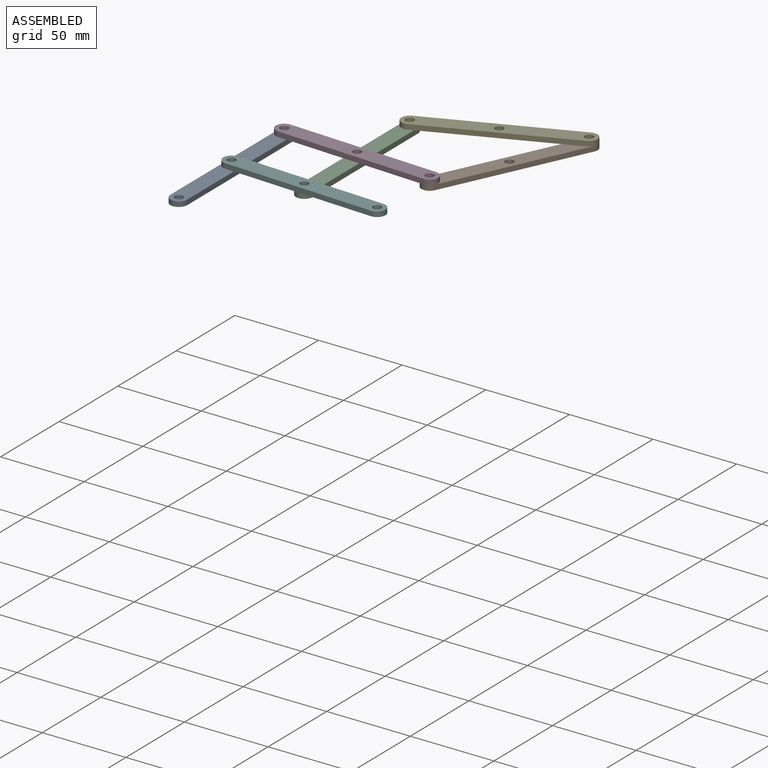
[diagram: assembled view]
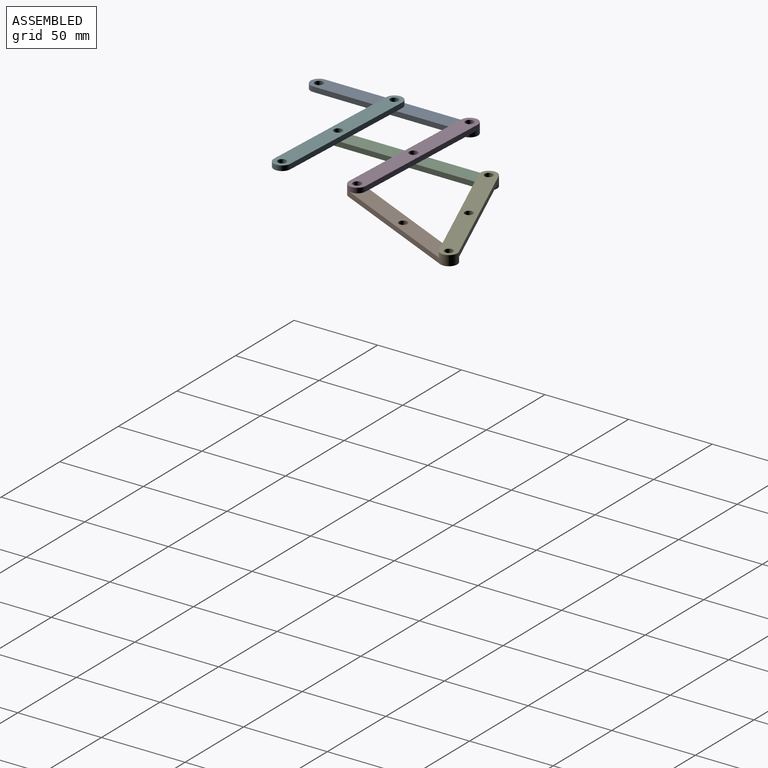
[diagram: assembled view, second angle]
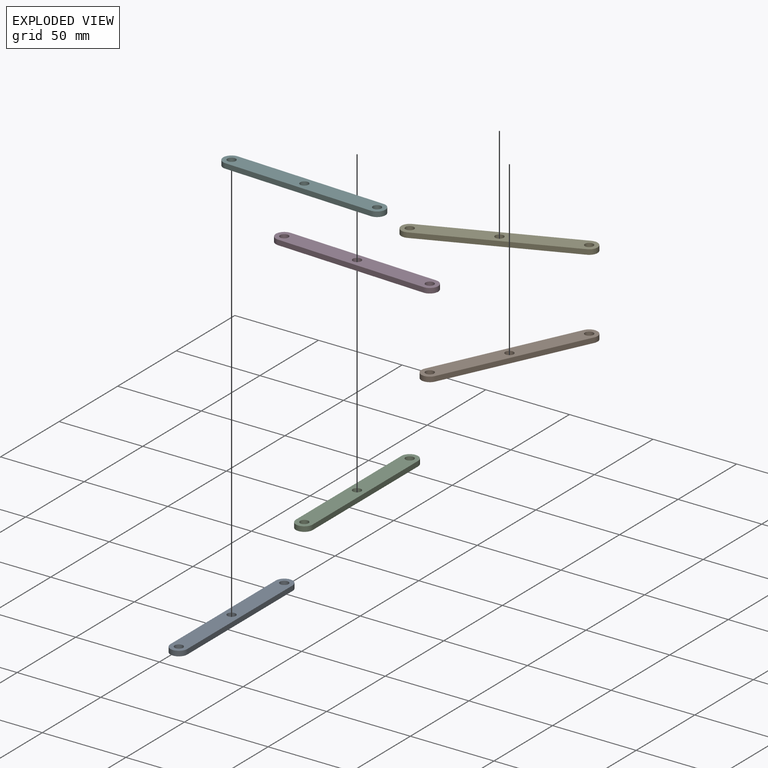
[diagram: exploded view]
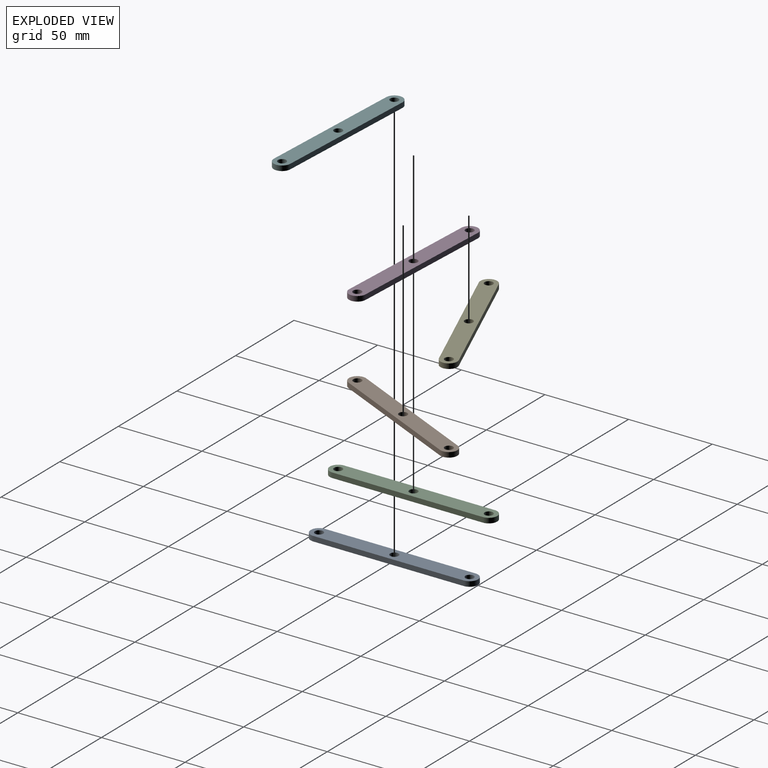
[diagram: exploded view, second angle]
ASSEMBLY  parts=6 mates=12
PART A: 9 faces, bbox 10x100x3 mm
  f0: plane 90x3mm, normal (-1,0,0), area 270mm2, adj f2,f3,f4,f5
  f1: plane 90x3mm, normal (1,0,0), area 270mm2, adj f2,f3,f4,f5
  f2: plane 100x10mm, normal (0,0,1), area 919.6mm2, adj f0,f1,f4,f5,f6,f7,f8
  f3: plane 100x10mm, normal (0,0,-1), area 919.6mm2, adj f0,f1,f4,f5,f6,f7,f8
  f4: cylinder r=5mm len=10mm, axis (0,0,-1), area 47.1mm2, adj f0,f1,f2,f3
  f5: cylinder r=5mm len=10mm, axis (0,0,1), area 47.1mm2, adj f0,f1,f2,f3
  f6: cylinder r=2.5mm len=5mm, axis (0,0,1), area 47.1mm2, adj f2,f3
  f7: cylinder r=2.5mm len=5mm, axis (0,0,1), area 47.1mm2, adj f2,f3
  f8: cylinder r=2.5mm len=5mm, axis (0,0,1), area 47.1mm2, adj f2,f3
PART B: same geometry as A
PART C: same geometry as A
PART D: same geometry as A
PART E: same geometry as A
PART F: same geometry as A
PLACE A t=(-49.58,53.87,-31.96)mm fixed
PLACE B rot(axis=(0.22,0.98,0),180deg) t=(90.19,128.59,-28.96)mm
PLACE C rot(axis=(0,0,1),0deg) t=(-4.62,96.79,-31.96)mm
PLACE D rot(axis=(0,0,1),87.3deg) t=(-49.8,44.11,-28.96)mm
PLACE E rot(axis=(-0.83,0.56,0),180deg) t=(-6.15,94.5,-25.96)mm
PLACE F rot(axis=(0,0,-1),92.7deg) t=(50.55,4.46,-28.96)mm
MATE planar C.f6 <-> D.f6  axis (0,0,1) through (0.38,46.79,-28.96)mm
MATE cylindrical A.f4 <-> D.f4  axis (0,0,1) through (-44.58,48.87,-28.96)mm
MATE cylindrical C.f5 <-> F.f6  axis (0,0,1) through (0.38,1.79,-28.96)mm
MATE planar F.f3 <-> A.f6  axis (0,0,-1) through (-44.34,8.87,-28.96)mm
MATE cylindrical C.f4 <-> E.f4  axis (0,0,1) through (0.38,91.79,-30.46)mm
MATE planar D.f6 <-> B.f3  axis (0,0,-1) through (0.38,46.79,-28.96)mm
MATE cylindrical E.f5 <-> B.f4  axis (0,0,-1) through (83.54,126.18,-27.46)mm
MATE cylindrical A.f6 <-> F.f5  axis (0,0,1) through (-44.58,3.87,-30.46)mm
MATE cylindrical D.f5 <-> B.f5  axis (0,0,1) through (45.33,44.7,-25.96)mm
MATE planar E.f2 <-> C.f2  axis (0,0,-1) through (85.45,121.56,-28.96)mm
MATE cylindrical D.f6 <-> C.f6  axis (0,0,1) through (0.38,46.79,-25.96)mm
MATE planar A.f6 <-> D.f6  axis (0,0,1) through (-44.58,3.87,-28.96)mm
